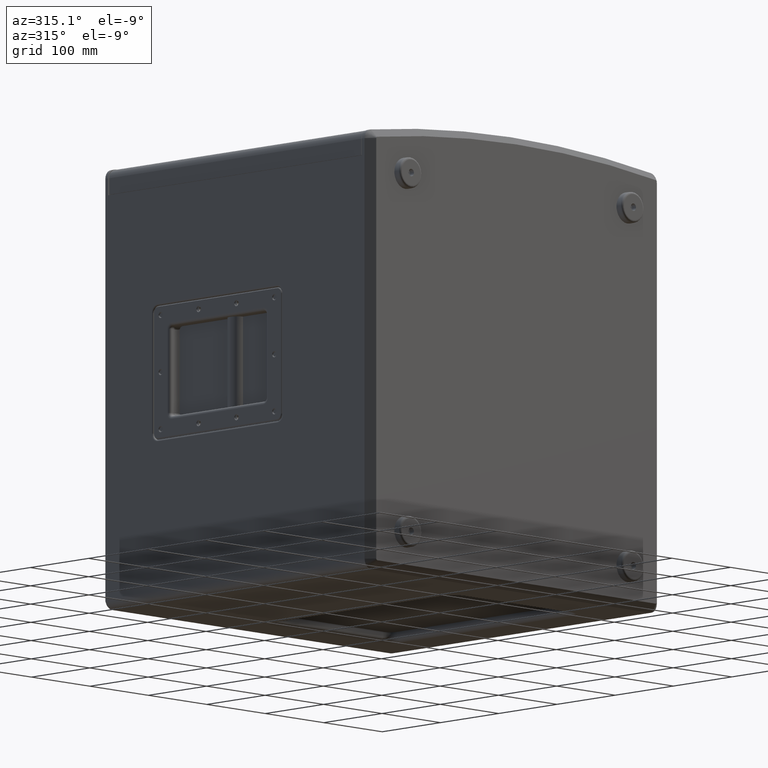
[diagram: clean part render]
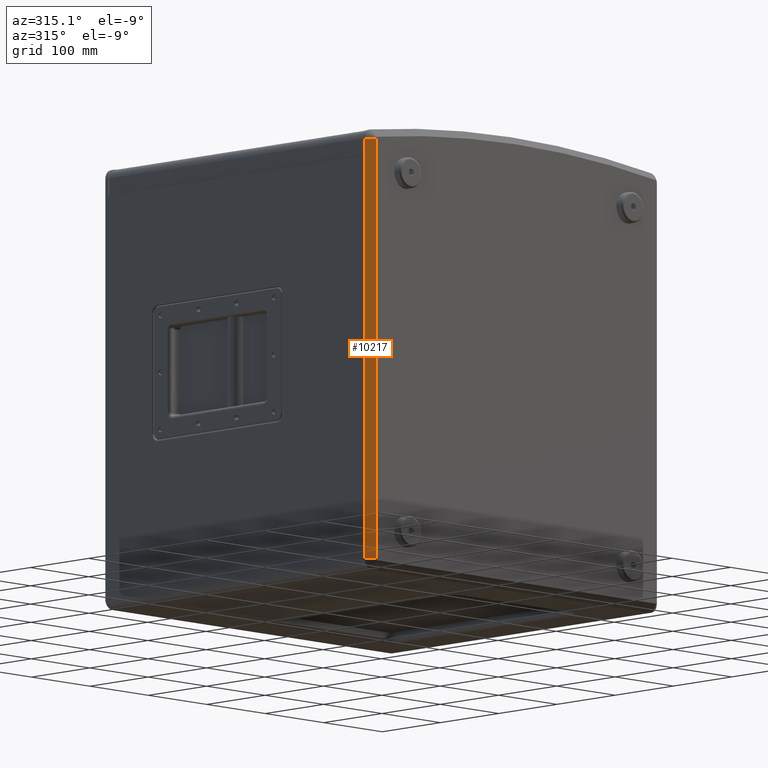
[diagram: same view with one face highlighted and labeled with its STEP entity id]
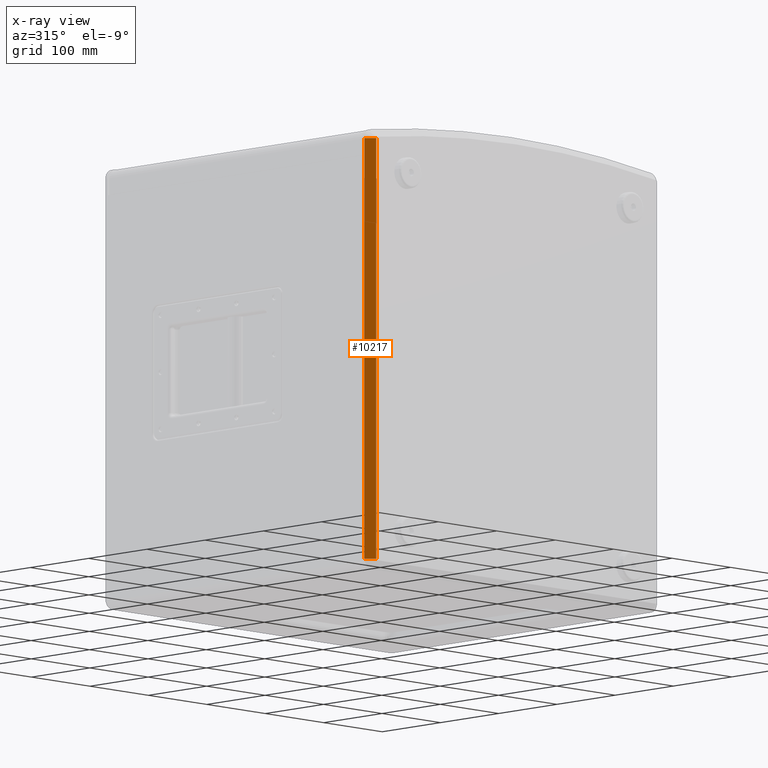
[diagram: x-ray of the same camera — body ghosted, the highlighted face saturated]
A machine part, auxiliary view. The second image highlights one B-rep face of the part: STEP entity #10217.
The next image is the same camera in x-ray: the body ghosted, the highlighted face saturated — about 0% of this face is hidden behind the body in this view.
In plain terms, the highlighted planar face has unit normal (0.7071, 0.7071, 0).
Its self-contained STEP definition (entity closure, byte-faithful):
#1300 = FACE_OUTER_BOUND ( 'NONE', #8981, .T. ) ;
#1364 = ORIENTED_EDGE ( 'NONE', *, *, #17931, .T. ) ;
#1437 = DIRECTION ( 'NONE',  ( 0.7071067811865445751, -0.7071067811865504593, 0.0000000000000000000 ) ) ;
#2422 = CARTESIAN_POINT ( 'NONE',  ( -240.0000000000001137, -232.5000000000000284, 247.6439429288581664 ) ) ;
#2572 = DIRECTION ( 'NONE',  ( 0.7071067811865504593, 0.7071067811865445751, 0.0000000000000000000 ) ) ;
#3232 = VERTEX_POINT ( 'NONE', #38929 ) ;
#4731 = DIRECTION ( 'NONE',  ( -0.0000000000000000000, 0.0000000000000000000, -1.000000000000000000 ) ) ;
#4835 = CARTESIAN_POINT ( 'NONE',  ( -250.0000000000000000, -222.5000000000000568, -267.9999999999999432 ) ) ;
#6198 = CARTESIAN_POINT ( 'NONE',  ( -240.0000000000001137, -232.5000000000000284, 280.0000000000000568 ) ) ;
#8842 = CARTESIAN_POINT ( 'NONE',  ( -250.0000000000000000, -222.5000000000000568, 280.0000000000000568 ) ) ;
#8981 = EDGE_LOOP ( 'NONE', ( #1364, #38902, #37185, #41203 ) ) ;
#9159 = DIRECTION ( 'NONE',  ( 0.0000000000000000000, 0.0000000000000000000, -1.000000000000000000 ) ) ;
#9619 = EDGE_CURVE ( 'NONE', #3232, #32169, #27609, .T. ) ;
#10217 = ADVANCED_FACE ( 'NONE', ( #1300 ), #14326, .F. ) ;
#10222 = VERTEX_POINT ( 'NONE', #34965 ) ;
#11036 = LINE ( 'NONE', #4835, #42049 ) ;
#12502 = AXIS2_PLACEMENT_3D ( 'NONE', #6198, #2572, #9159 ) ;
#14326 = PLANE ( 'NONE',  #12502 ) ;
#14372 = LINE ( 'NONE', #33954, #15775 ) ;
#15775 = VECTOR ( 'NONE', #4731, 1000.000000000000000 ) ;
#17931 = EDGE_CURVE ( 'NONE', #19879, #32169, #19452, .T. ) ;
#17968 = VECTOR ( 'NONE', #40604, 1000.000000000000000 ) ;
#18222 = CARTESIAN_POINT ( 'NONE',  ( -250.0000000000000000, -222.5000000000000568, 247.6439429288581664 ) ) ;
#19452 = LINE ( 'NONE', #25812, #27699 ) ;
#19879 = VERTEX_POINT ( 'NONE', #2422 ) ;
#25812 = CARTESIAN_POINT ( 'NONE',  ( -240.0000000000001137, -232.5000000000000284, 247.6439429288581664 ) ) ;
#26622 = EDGE_CURVE ( 'NONE', #3232, #10222, #11036, .T. ) ;
#27609 = LINE ( 'NONE', #8842, #17968 ) ;
#27699 = VECTOR ( 'NONE', #34769, 1000.000000000000000 ) ;
#32169 = VERTEX_POINT ( 'NONE', #18222 ) ;
#33954 = CARTESIAN_POINT ( 'NONE',  ( -240.0000000000001137, -232.5000000000000284, 280.0000000000000568 ) ) ;
#34769 = DIRECTION ( 'NONE',  ( -0.7071067811865435759, 0.7071067811865514585, 0.0000000000000000000 ) ) ;
#34965 = CARTESIAN_POINT ( 'NONE',  ( -240.0000000000001137, -232.5000000000000284, -267.9999999999999432 ) ) ;
#37185 = ORIENTED_EDGE ( 'NONE', *, *, #26622, .T. ) ;
#37523 = EDGE_CURVE ( 'NONE', #19879, #10222, #14372, .T. ) ;
#38902 = ORIENTED_EDGE ( 'NONE', *, *, #9619, .F. ) ;
#38929 = CARTESIAN_POINT ( 'NONE',  ( -250.0000000000000000, -222.5000000000000568, -267.9999999999999432 ) ) ;
#40604 = DIRECTION ( 'NONE',  ( 0.0000000000000000000, 0.0000000000000000000, 1.000000000000000000 ) ) ;
#41203 = ORIENTED_EDGE ( 'NONE', *, *, #37523, .F. ) ;
#42049 = VECTOR ( 'NONE', #1437, 1000.000000000000000 ) ;